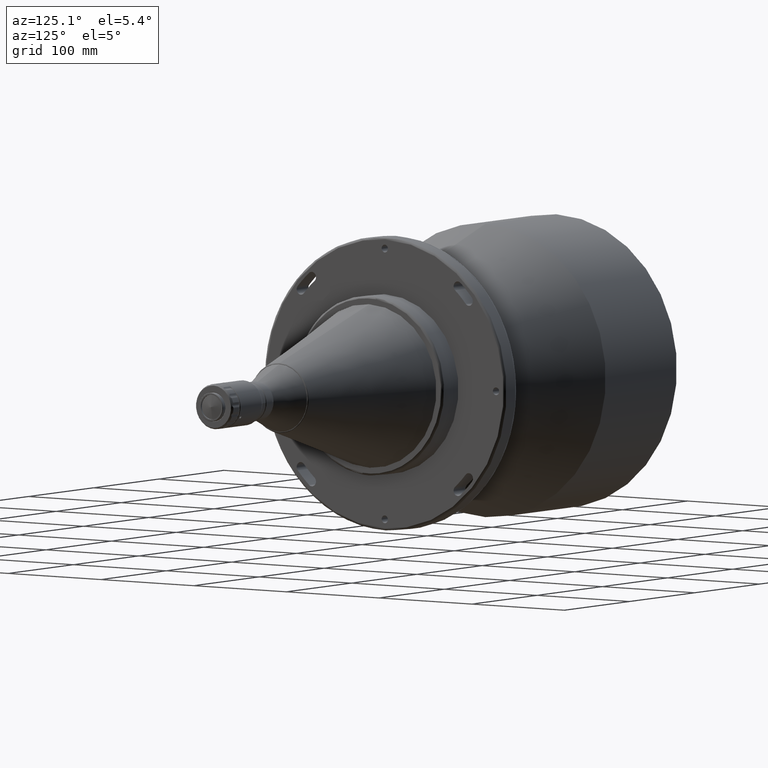
[diagram: clean part render]
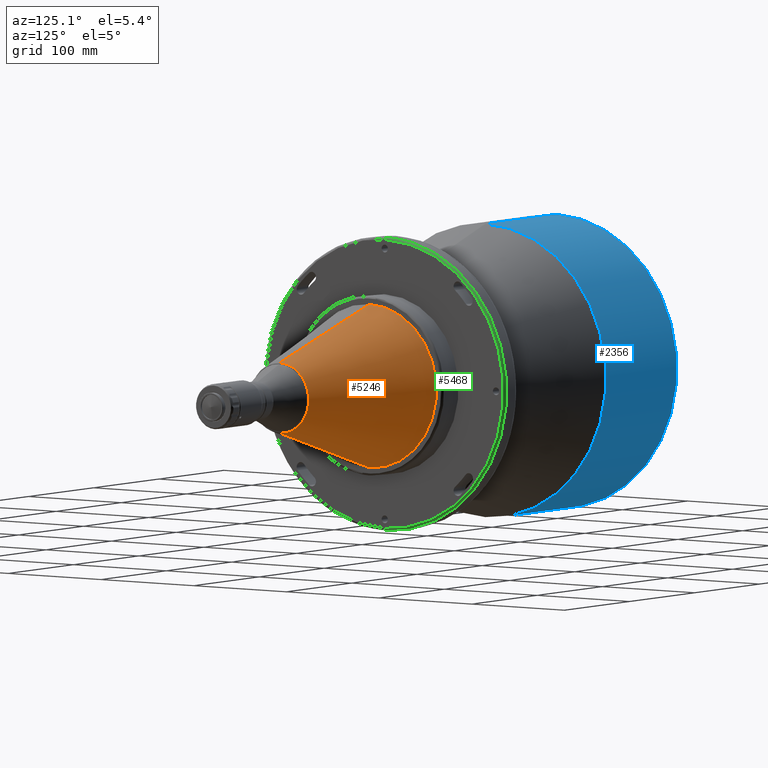
[diagram: same view with three faces highlighted in distinct colors, each labeled with its STEP entity id]
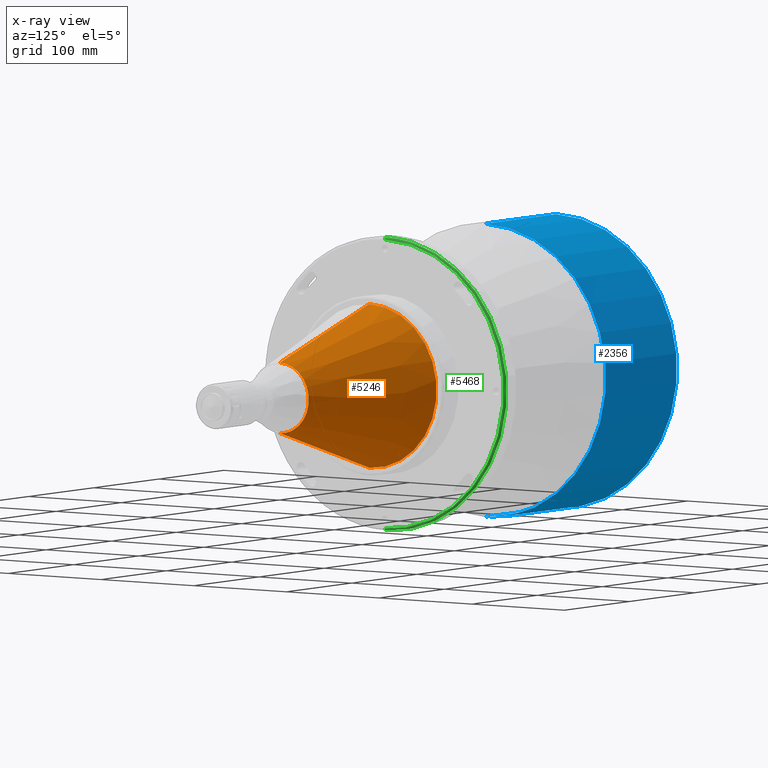
[diagram: x-ray of the same camera — body ghosted, the three highlighted faces saturated]
A machine part, auxiliary view with three faces highlighted in distinct colors.
The next image is the same camera in x-ray (body ghosted, the three faces saturated) — at least one of them is partly hidden behind the body in this view.
Their STEP definitions:

[orange] entity #5246 — the highlighted conical surface has half-angle 16.718 deg.
#124 = LINE ( 'NONE', #4328, #3435 ) ;
#140 = DIRECTION ( 'NONE',  ( 1.778408139012570200E-015, 0.4563305949361624000, -0.8898103101926881900 ) ) ;
#168 = VERTEX_POINT ( 'NONE', #4276 ) ;
#436 = CIRCLE ( 'NONE', #4480, 72.49999999996640600 ) ;
#547 = CARTESIAN_POINT ( 'NONE',  ( 288.0000000000000600, 8.878689293828758500E-015, -72.50000000008532200 ) ) ;
#566 = VERTEX_POINT ( 'NONE', #4180 ) ;
#606 = CIRCLE ( 'NONE', #772, 31.21395477985127800 ) ;
#772 = AXIS2_PLACEMENT_3D ( 'NONE', #6454, #1199, #2231 ) ;
#986 = VERTEX_POINT ( 'NONE', #1131 ) ;
#1131 = CARTESIAN_POINT ( 'NONE',  ( 425.4576594719998800, 3.822606980987510800E-015, -31.21395477985128900 ) ) ;
#1199 = DIRECTION ( 'NONE',  ( 1.000000000000000000, -0.0000000000000000000, -0.0000000000000000000 ) ) ;
#1651 = DIRECTION ( 'NONE',  ( 0.0000000000000000000, 0.0000000000000000000, 1.000000000000000000 ) ) ;
#1835 = VECTOR ( 'NONE', #5979, 1000.000000000000000 ) ;
#1910 = AXIS2_PLACEMENT_3D ( 'NONE', #3761, #4820, #1651 ) ;
#1925 = CARTESIAN_POINT ( 'NONE',  ( 288.0000000000000600, 0.0000000000000000000, 0.0000000000000000000 ) ) ;
#2230 = VERTEX_POINT ( 'NONE', #4112 ) ;
#2231 = DIRECTION ( 'NONE',  ( 1.778408139012570200E-015, 0.4563305949226457200, -0.8898103101996200900 ) ) ;
#2249 = DIRECTION ( 'NONE',  ( 1.000000000000000000, -0.0000000000000000000, -0.0000000000000000000 ) ) ;
#2424 = DIRECTION ( 'NONE',  ( -0.9577327539512142700, 0.0000000000000000000, 0.2876594723088793400 ) ) ;
#2443 = DIRECTION ( 'NONE',  ( 0.0000000000000000000, -0.9956528185935649100, 0.09314217533797419800 ) ) ;
#2541 = CONICAL_SURFACE ( 'NONE', #1910, 31.21395477985127100, 0.2917821164683816500 ) ;
#3109 = FACE_OUTER_BOUND ( 'NONE', #3486, .T. ) ;
#3298 = EDGE_CURVE ( 'NONE', #986, #5679, #5949, .T. ) ;
#3435 = VECTOR ( 'NONE', #2424, 1000.000000000000000 ) ;
#3477 = DIRECTION ( 'NONE',  ( -1.000000000000000000, 0.0000000000000000000, 0.0000000000000000000 ) ) ;
#3486 = EDGE_LOOP ( 'NONE', ( #6536, #4983, #4337, #5517, #4123 ) ) ;
#3535 = EDGE_CURVE ( 'NONE', #168, #566, #5240, .T. ) ;
#3761 = CARTESIAN_POINT ( 'NONE',  ( 425.4576594719999300, 0.0000000000000000000, 0.0000000000000000000 ) ) ;
#4083 = EDGE_CURVE ( 'NONE', #566, #2230, #124, .T. ) ;
#4112 = CARTESIAN_POINT ( 'NONE',  ( 288.0000000000000600, 0.0000000000000000000, 72.50000000008532200 ) ) ;
#4123 = ORIENTED_EDGE ( 'NONE', *, *, #3535, .F. ) ;
#4180 = CARTESIAN_POINT ( 'NONE',  ( 425.4576594719998800, 0.0000000000000000000, 31.21395477985128900 ) ) ;
#4276 = CARTESIAN_POINT ( 'NONE',  ( 425.4576594719998800, 14.24388255625559400, -27.77449878435608700 ) ) ;
#4328 = CARTESIAN_POINT ( 'NONE',  ( 425.4576594719999300, 0.0000000000000000000, 31.21395477985127100 ) ) ;
#4337 = ORIENTED_EDGE ( 'NONE', *, *, #4372, .F. ) ;
#4372 = EDGE_CURVE ( 'NONE', #2230, #5679, #436, .T. ) ;
#4480 = AXIS2_PLACEMENT_3D ( 'NONE', #1925, #3477, #2443 ) ;
#4699 = EDGE_CURVE ( 'NONE', #986, #168, #606, .T. ) ;
#4820 = DIRECTION ( 'NONE',  ( -1.000000000000000000, -0.0000000000000000000, 0.0000000000000000000 ) ) ;
#4983 = ORIENTED_EDGE ( 'NONE', *, *, #3298, .T. ) ;
#5032 = CARTESIAN_POINT ( 'NONE',  ( 425.4576594719999300, 3.822606980987509300E-015, -31.21395477985127100 ) ) ;
#5240 = CIRCLE ( 'NONE', #6051, 31.21395477985127800 ) ;
#5246 = ADVANCED_FACE ( 'NONE', ( #3109 ), #2541, .T. ) ;
#5308 = CARTESIAN_POINT ( 'NONE',  ( 425.4576594719998800, 0.0000000000000000000, 0.0000000000000000000 ) ) ;
#5517 = ORIENTED_EDGE ( 'NONE', *, *, #4083, .F. ) ;
#5679 = VERTEX_POINT ( 'NONE', #547 ) ;
#5949 = LINE ( 'NONE', #5032, #1835 ) ;
#5979 = DIRECTION ( 'NONE',  ( -0.9577327539512142700, 3.522812520074857700E-017, -0.2876594723088793400 ) ) ;
#6051 = AXIS2_PLACEMENT_3D ( 'NONE', #5308, #2249, #140 ) ;
#6454 = CARTESIAN_POINT ( 'NONE',  ( 425.4576594719998800, 0.0000000000000000000, 0.0000000000000000000 ) ) ;
#6536 = ORIENTED_EDGE ( 'NONE', *, *, #4699, .F. ) ;

[blue] entity #2356 — the highlighted cylindrical surface (partial cylindrical patch) has radius 130 mm, axis along (-1, 0, 0).
#341 = CARTESIAN_POINT ( 'NONE',  ( 0.9999999999998898700, 1.592040838891559500E-014, -130.0000000000000000 ) ) ;
#400 = CARTESIAN_POINT ( 'NONE',  ( 110.0000000000000000, 0.0000000000000000000, 130.0000000000000000 ) ) ;
#434 = EDGE_CURVE ( 'NONE', #4613, #4044, #5692, .T. ) ;
#657 = AXIS2_PLACEMENT_3D ( 'NONE', #2160, #3184, #1660 ) ;
#1085 = DIRECTION ( 'NONE',  ( 8.473456978809788300E-016, 0.0000000000000000000, -1.000000000000000000 ) ) ;
#1147 = DIRECTION ( 'NONE',  ( -1.000000000000000000, 0.0000000000000000000, 0.0000000000000000000 ) ) ;
#1150 = ORIENTED_EDGE ( 'NONE', *, *, #2310, .T. ) ;
#1357 = AXIS2_PLACEMENT_3D ( 'NONE', #2490, #6198, #2528 ) ;
#1522 = CYLINDRICAL_SURFACE ( 'NONE', #657, 130.0000000000000000 ) ;
#1660 = DIRECTION ( 'NONE',  ( 0.0000000000000000000, 0.0000000000000000000, 1.000000000000000000 ) ) ;
#1737 = AXIS2_PLACEMENT_3D ( 'NONE', #4160, #2119, #1085 ) ;
#1748 = CARTESIAN_POINT ( 'NONE',  ( 0.9999999999998898700, 0.0000000000000000000, 130.0000000000000000 ) ) ;
#1874 = VERTEX_POINT ( 'NONE', #341 ) ;
#1961 = ORIENTED_EDGE ( 'NONE', *, *, #6079, .T. ) ;
#2119 = DIRECTION ( 'NONE',  ( 1.000000000000000000, 0.0000000000000000000, 0.0000000000000000000 ) ) ;
#2160 = CARTESIAN_POINT ( 'NONE',  ( 110.0000000000000000, 0.0000000000000000000, 0.0000000000000000000 ) ) ;
#2310 = EDGE_CURVE ( 'NONE', #3445, #1874, #6140, .T. ) ;
#2356 = ADVANCED_FACE ( 'NONE', ( #3541 ), #1522, .T. ) ;
#2408 = EDGE_CURVE ( 'NONE', #3445, #4613, #3213, .T. ) ;
#2490 = CARTESIAN_POINT ( 'NONE',  ( 110.0000000000000000, 0.0000000000000000000, 0.0000000000000000000 ) ) ;
#2497 = CIRCLE ( 'NONE', #1737, 130.0000000000000000 ) ;
#2528 = DIRECTION ( 'NONE',  ( 0.0000000000000000000, 8.881784197001252300E-016, 1.000000000000000000 ) ) ;
#2985 = DIRECTION ( 'NONE',  ( -1.000000000000000000, 0.0000000000000000000, 0.0000000000000000000 ) ) ;
#3184 = DIRECTION ( 'NONE',  ( -1.000000000000000000, 0.0000000000000000000, 0.0000000000000000000 ) ) ;
#3213 = CIRCLE ( 'NONE', #1357, 130.0000000000000000 ) ;
#3445 = VERTEX_POINT ( 'NONE', #4170 ) ;
#3541 = FACE_OUTER_BOUND ( 'NONE', #6141, .T. ) ;
#3933 = VECTOR ( 'NONE', #1147, 1000.000000000000000 ) ;
#4044 = VERTEX_POINT ( 'NONE', #1748 ) ;
#4160 = CARTESIAN_POINT ( 'NONE',  ( 0.9999999999998898700, 0.0000000000000000000, 0.0000000000000000000 ) ) ;
#4170 = CARTESIAN_POINT ( 'NONE',  ( 109.9999999999123500, -3.199613484839166100E-008, -130.0000000000000000 ) ) ;
#4613 = VERTEX_POINT ( 'NONE', #4760 ) ;
#4760 = CARTESIAN_POINT ( 'NONE',  ( 109.9999999999561700, -9.338537356588236200E-009, 130.0000000000000000 ) ) ;
#5040 = VECTOR ( 'NONE', #2985, 1000.000000000000000 ) ;
#5192 = ORIENTED_EDGE ( 'NONE', *, *, #434, .F. ) ;
#5692 = LINE ( 'NONE', #400, #5040 ) ;
#6079 = EDGE_CURVE ( 'NONE', #1874, #4044, #2497, .T. ) ;
#6127 = ORIENTED_EDGE ( 'NONE', *, *, #2408, .F. ) ;
#6140 = LINE ( 'NONE', #6285, #3933 ) ;
#6141 = EDGE_LOOP ( 'NONE', ( #6127, #1150, #1961, #5192 ) ) ;
#6198 = DIRECTION ( 'NONE',  ( 1.000000000000000000, -0.0000000000000000000, -0.0000000000000000000 ) ) ;
#6285 = CARTESIAN_POINT ( 'NONE',  ( 110.0000000000000000, 1.592040838891559500E-014, -130.0000000000000000 ) ) ;

[green] entity #5468 — the highlighted face is a freeform B-spline surface patch.
#11 = VERTEX_POINT ( 'NONE', #1114 ) ;
#220 = CARTESIAN_POINT ( 'NONE',  ( 263.4715728739999500, 0.0000000000000000000, 130.0000000000000000 ) ) ;
#361 = CARTESIAN_POINT ( 'NONE',  ( 262.3000000000000100, 0.0000000000000000000, 0.0000000000000000000 ) ) ;
#409 = CARTESIAN_POINT ( 'NONE',  ( 263.4715728740000000, 0.0000000000000000000, 130.0000000000000000 ) ) ;
#662 = CARTESIAN_POINT ( 'NONE',  ( 264.3000000000000100, 0.0000000000000000000, -127.9999999754913300 ) ) ;
#774 =( BOUNDED_CURVE ( )  B_SPLINE_CURVE ( 3, ( #6619, #1968, #2509, #4595 ),
 .UNSPECIFIED., .F., .F. ) 
 B_SPLINE_CURVE_WITH_KNOTS ( ( 4, 4 ),
 ( 0.07187862746175062400, 0.9455957138069116500 ),
 .UNSPECIFIED. ) 
 CURVE ( )  GEOMETRIC_REPRESENTATION_ITEM ( )  RATIONAL_B_SPLINE_CURVE ( ( 0.9565783021300921000, 0.7697947703221902400, 0.7697947704079460800, 0.9565783023873579700 ) ) 
 REPRESENTATION_ITEM ( '' )  );
#877 = CARTESIAN_POINT ( 'NONE',  ( 264.3000000000161000, 255.9622876403368000, 127.9811438201684000 ) ) ;
#928 = CARTESIAN_POINT ( 'NONE',  ( 264.3000000000080300, 255.9811438211683900, 127.9905719105841900 ) ) ;
#1033 = VERTEX_POINT ( 'NONE', #4292 ) ;
#1114 = CARTESIAN_POINT ( 'NONE',  ( 264.3000000000000100, 0.0000000000000000000, 127.9999999754913300 ) ) ;
#1355 = CARTESIAN_POINT ( 'NONE',  ( 262.3000000000000100, 0.0000000000000000000, 130.0000000000000000 ) ) ;
#1395 = CARTESIAN_POINT ( 'NONE',  ( 264.3000000000162100, 0.0000000000000000000, -127.9811438201684000 ) ) ;
#1397 = EDGE_CURVE ( 'NONE', #2355, #1033, #774, .T. ) ;
#1687 = CARTESIAN_POINT ( 'NONE',  ( 264.3000000000001300, 256.0000000016374900, -128.0000000008187400 ) ) ;
#1696 = FACE_OUTER_BOUND ( 'NONE', #1989, .T. ) ;
#1880 = CARTESIAN_POINT ( 'NONE',  ( 263.4715728740000000, 0.0000000000000000000, -130.0000000000000000 ) ) ;
#1894 = DIRECTION ( 'NONE',  ( 1.000000000000000000, -0.0000000000000000000, -0.0000000000000000000 ) ) ;
#1899 = CARTESIAN_POINT ( 'NONE',  ( 263.4715728740000000, 260.0000000000000000, -130.0000000000000000 ) ) ;
#1920 = CARTESIAN_POINT ( 'NONE',  ( 264.3000000000080800, 0.0000000000000000000, 127.9905719105841900 ) ) ;
#1968 = CARTESIAN_POINT ( 'NONE',  ( 264.2999999989999700, 0.0000000000000000000, -129.1715728759999700 ) ) ;
#1989 = EDGE_LOOP ( 'NONE', ( #2937, #5775, #2318, #5580 ) ) ;
#2060 = EDGE_CURVE ( 'NONE', #11, #2355, #2886, .T. ) ;
#2318 = ORIENTED_EDGE ( 'NONE', *, *, #5809, .T. ) ;
#2355 = VERTEX_POINT ( 'NONE', #5239 ) ;
#2437 = CARTESIAN_POINT ( 'NONE',  ( 264.3000000000241700, 255.9434314595052100, -127.9717157297526000 ) ) ;
#2509 = CARTESIAN_POINT ( 'NONE',  ( 263.4715728739999500, 0.0000000000000000000, -130.0000000000000000 ) ) ;
#2886 =( BOUNDED_CURVE ( )  B_SPLINE_CURVE ( 3, ( #6334, #4773, #1687, #662 ),
 .UNSPECIFIED., .F., .F. ) 
 B_SPLINE_CURVE_WITH_KNOTS ( ( 4, 4 ),
 ( 0.0000000000000000000, 1.000000000000000000 ),
 .UNSPECIFIED. ) 
 CURVE ( )  GEOMETRIC_REPRESENTATION_ITEM ( )  RATIONAL_B_SPLINE_CURVE ( ( 0.9565783021300921000, 0.3188594340433640300, 0.3188594340433640300, 0.9565783021300921000 ) ) 
 REPRESENTATION_ITEM ( '' )  );
#2931 = CARTESIAN_POINT ( 'NONE',  ( 264.2999999989999700, 258.3431457519999400, -129.1715728759999700 ) ) ;
#2937 = ORIENTED_EDGE ( 'NONE', *, *, #2060, .T. ) ;
#2948 = CARTESIAN_POINT ( 'NONE',  ( 264.3000000000000700, 0.0000000000000000000, 128.0000000009999900 ) ) ;
#2969 = CARTESIAN_POINT ( 'NONE',  ( 264.3000000000000700, 0.0000000000000000000, -128.0000000009999900 ) ) ;
#3418 = CARTESIAN_POINT ( 'NONE',  ( 264.3000000000161000, 255.9622876403368000, -127.9811438201684000 ) ) ;
#3446 = CARTESIAN_POINT ( 'NONE',  ( 264.2999999989999700, 258.3431457519999400, 129.1715728759999700 ) ) ;
#3518 = CARTESIAN_POINT ( 'NONE',  ( 262.3000000000000100, 260.0000000000000000, 130.0000000000000000 ) ) ;
#3697 = EDGE_CURVE ( 'NONE', #4256, #11, #4789, .T. ) ;
#3886 = CARTESIAN_POINT ( 'NONE',  ( 264.3000000000000100, 0.0000000000000000000, 127.9999999754913300 ) ) ;
#4024 = CARTESIAN_POINT ( 'NONE',  ( 264.2999999989999700, 0.0000000000000000000, -129.1715728759999700 ) ) ;
#4256 = VERTEX_POINT ( 'NONE', #6476 ) ;
#4292 = CARTESIAN_POINT ( 'NONE',  ( 262.3000000000000100, -3.999515996166991300E-008, -130.0000000000000000 ) ) ;
#4334 = CARTESIAN_POINT ( 'NONE',  ( 264.2999999989999700, 0.0000000000000000000, 129.1715728759999700 ) ) ;
#4450 = CARTESIAN_POINT ( 'NONE',  ( 264.3000000000080300, 255.9811438211683900, -127.9905719105841900 ) ) ;
#4472 = CARTESIAN_POINT ( 'NONE',  ( 264.3000000000080800, 0.0000000000000000000, -127.9905719105841900 ) ) ;
#4520 = CARTESIAN_POINT ( 'NONE',  ( 264.3000000000000100, 256.0000000019999800, -128.0000000009999900 ) ) ;
#4595 = CARTESIAN_POINT ( 'NONE',  ( 262.3000000000000100, -3.999515996166991300E-008, -130.0000000000000000 ) ) ;
#4773 = CARTESIAN_POINT ( 'NONE',  ( 264.3000000000001300, 256.0000000016374900, 128.0000000008187400 ) ) ;
#4789 =( BOUNDED_CURVE ( )  B_SPLINE_CURVE ( 3, ( #4877, #220, #4334, #3886 ),
 .UNSPECIFIED., .F., .F. ) 
 B_SPLINE_CURVE_WITH_KNOTS ( ( 4, 4 ),
 ( 0.06314145665484280400, 0.9368585429999953800 ),
 .UNSPECIFIED. ) 
 CURVE ( )  GEOMETRIC_REPRESENTATION_ITEM ( )  RATIONAL_B_SPLINE_CURVE ( ( 0.9565783023873579700, 0.7697947704079460800, 0.7697947703221902400, 0.9565783021300921000 ) ) 
 REPRESENTATION_ITEM ( '' )  );
#4877 = CARTESIAN_POINT ( 'NONE',  ( 262.3000000000000100, 1.777561431381968800E-008, 130.0000000000000000 ) ) ;
#4959 = CARTESIAN_POINT ( 'NONE',  ( 264.3000000000000100, 256.0000000019999800, 128.0000000009999900 ) ) ;
#4976 = DIRECTION ( 'NONE',  ( 0.0000000000000000000, -1.000000000000000000, 0.0000000000000000000 ) ) ;
#5239 = CARTESIAN_POINT ( 'NONE',  ( 264.3000000000000100, 0.0000000000000000000, -127.9999999754913300 ) ) ;
#5419 =( BOUNDED_SURFACE ( )  B_SPLINE_SURFACE ( 3, 3, ( 
 ( #1355, #3518, #5558, #6025 ),
 ( #409, #6546, #1899, #1880 ),
 ( #6073, #3446, #2931, #4024 ),
 ( #2948, #4959, #4520, #2969 ),
 ( #1920, #928, #4450, #4472 ),
 ( #6567, #877, #3418, #1395 ),
 ( #6612, #5535, #2437, #5492 ) ),
 .UNSPECIFIED., .F., .F., .F. ) 
 B_SPLINE_SURFACE_WITH_KNOTS ( ( 4, 3, 4 ),
 ( 4, 4 ),
 ( 0.06314145665484280400, 0.9368585429440200500, 0.9455957138069117600 ),
 ( 0.0000000000000000000, 1.000000000000000000 ),
 .UNSPECIFIED. ) 
 GEOMETRIC_REPRESENTATION_ITEM ( )  RATIONAL_B_SPLINE_SURFACE ( (
 ( 0.9565783023873579700, 0.3188594341291190500, 0.3188594341291190500, 0.9565783023873579700),
 ( 0.7697947704079460800, 0.2565982568026480300, 0.2565982568026480300, 0.7697947704079460800),
 ( 0.7697947703221902400, 0.2565982567740630000, 0.2565982567740630000, 0.7697947703221902400),
 ( 0.9565783021300921000, 0.3188594340433640300, 0.3188594340433640300, 0.9565783021300921000),
 ( 0.9565783021300921000, 0.3188594340433640300, 0.3188594340433640300, 0.9565783021300921000),
 ( 0.9565783021300921000, 0.3188594340433640300, 0.3188594340433640300, 0.9565783021300921000),
 ( 0.9565783021300921000, 0.3188594340433640300, 0.3188594340433640300, 0.9565783021300921000) ) ) 
 REPRESENTATION_ITEM ( '' )  SURFACE ( )  );
#5468 = ADVANCED_FACE ( 'NONE', ( #1696 ), #5419, .T. ) ;
#5492 = CARTESIAN_POINT ( 'NONE',  ( 264.3000000000242300, 0.0000000000000000000, -127.9717157297526000 ) ) ;
#5535 = CARTESIAN_POINT ( 'NONE',  ( 264.3000000000241700, 255.9434314595052100, 127.9717157297526000 ) ) ;
#5558 = CARTESIAN_POINT ( 'NONE',  ( 262.3000000000000100, 260.0000000000000000, -130.0000000000000000 ) ) ;
#5580 = ORIENTED_EDGE ( 'NONE', *, *, #3697, .T. ) ;
#5775 = ORIENTED_EDGE ( 'NONE', *, *, #1397, .T. ) ;
#5809 = EDGE_CURVE ( 'NONE', #1033, #4256, #6137, .T. ) ;
#5926 = AXIS2_PLACEMENT_3D ( 'NONE', #361, #1894, #4976 ) ;
#6025 = CARTESIAN_POINT ( 'NONE',  ( 262.3000000000000100, 0.0000000000000000000, -130.0000000000000000 ) ) ;
#6073 = CARTESIAN_POINT ( 'NONE',  ( 264.2999999989999700, 0.0000000000000000000, 129.1715728759999700 ) ) ;
#6137 = CIRCLE ( 'NONE', #5926, 130.0000000000000000 ) ;
#6334 = CARTESIAN_POINT ( 'NONE',  ( 264.3000000000000100, 0.0000000000000000000, 127.9999999754913300 ) ) ;
#6476 = CARTESIAN_POINT ( 'NONE',  ( 262.3000000000000100, 1.777561431381968800E-008, 130.0000000000000000 ) ) ;
#6546 = CARTESIAN_POINT ( 'NONE',  ( 263.4715728740000000, 260.0000000000000000, 130.0000000000000000 ) ) ;
#6567 = CARTESIAN_POINT ( 'NONE',  ( 264.3000000000162100, 0.0000000000000000000, 127.9811438201684000 ) ) ;
#6612 = CARTESIAN_POINT ( 'NONE',  ( 264.3000000000242300, 0.0000000000000000000, 127.9717157297526000 ) ) ;
#6619 = CARTESIAN_POINT ( 'NONE',  ( 264.3000000000000100, 0.0000000000000000000, -127.9999999754913300 ) ) ;